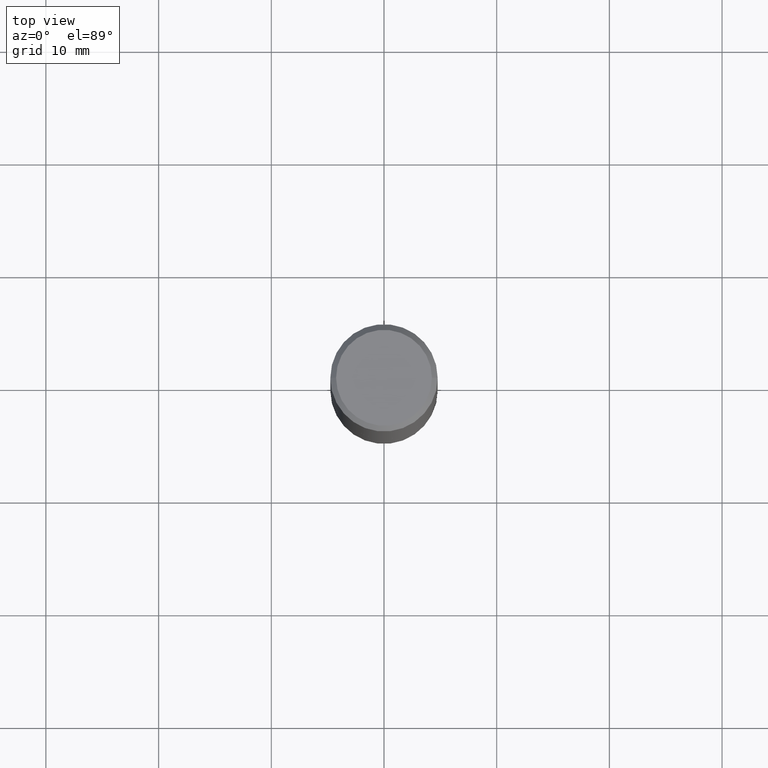
[diagram: clean part render]
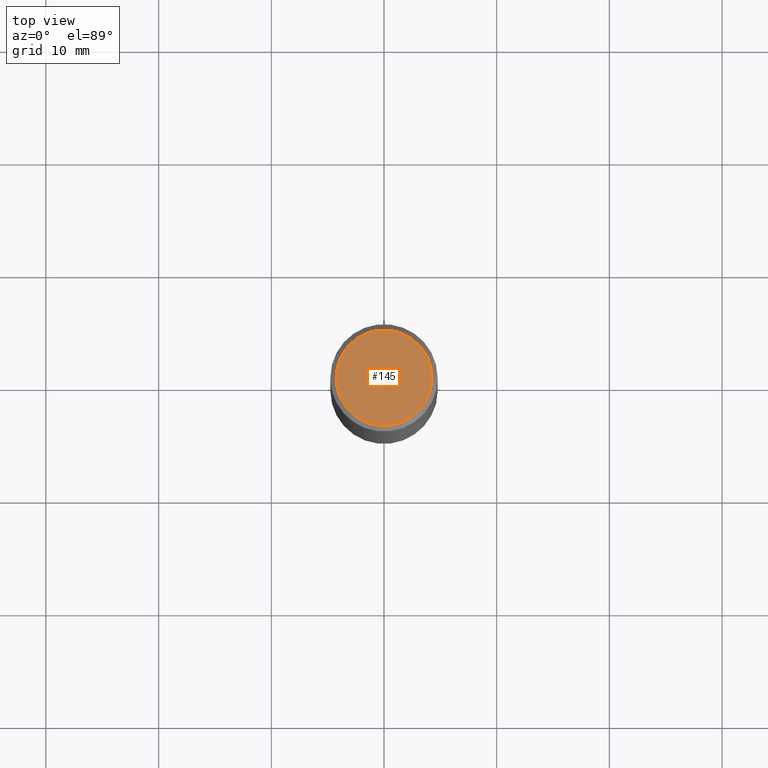
[diagram: same view with one face highlighted and labeled with its STEP entity id]
A machine part, top view. The second image highlights one B-rep face of the part: STEP entity #145.
In plain terms, the highlighted planar face has unit normal (0, -0, -1).
Its self-contained STEP definition (entity closure, byte-faithful):
#8 = VERTEX_POINT ( 'NONE', #209 ) ;
#14 = PLANE ( 'NONE',  #335 ) ;
#76 = CARTESIAN_POINT ( 'NONE',  ( 0.000000000000000000, 0.000000000000000000, 0.000000000000000000 ) ) ;
#83 = EDGE_LOOP ( 'NONE', ( #263, #156 ) ) ;
#93 = CIRCLE ( 'NONE', #160, 0.1674999999999998435 ) ;
#106 = EDGE_CURVE ( 'NONE', #311, #8, #191, .T. ) ;
#130 = DIRECTION ( 'NONE',  ( -1.000000000000000000, 6.982962677686265922E-15, -4.876176775795935793E-29 ) ) ;
#145 = ADVANCED_FACE ( 'NONE', ( #251 ), #14, .F. ) ;
#156 = ORIENTED_EDGE ( 'NONE', *, *, #106, .T. ) ;
#160 = AXIS2_PLACEMENT_3D ( 'NONE', #76, #198, #300 ) ;
#163 = DIRECTION ( 'NONE',  ( 2.438088387897960049E-29, -3.491481338843145188E-15, -1.000000000000000000 ) ) ;
#171 = CARTESIAN_POINT ( 'NONE',  ( 0.1674999999999998435, -1.252653207992877302E-15, 8.469775550109232378E-30 ) ) ;
#191 = CIRCLE ( 'NONE', #236, 0.1674999999999998435 ) ;
#192 = CARTESIAN_POINT ( 'NONE',  ( 1.169646248512448609E-15, 0.1674999999999998435, -5.848231242562263753E-16 ) ) ;
#194 = DIRECTION ( 'NONE',  ( 1.000000000000000000, -6.982962677686266711E-15, 4.876176775795936914E-29 ) ) ;
#198 = DIRECTION ( 'NONE',  ( -2.445468806185136597E-29, 3.491481338843145583E-15, 1.000000000000000000 ) ) ;
#209 = CARTESIAN_POINT ( 'NONE',  ( -0.1674999999999998435, 1.204561061900879864E-15, -8.301862719484106184E-30 ) ) ;
#236 = AXIS2_PLACEMENT_3D ( 'NONE', #323, #351, #194 ) ;
#251 = FACE_OUTER_BOUND ( 'NONE', #83, .T. ) ;
#263 = ORIENTED_EDGE ( 'NONE', *, *, #298, .T. ) ;
#298 = EDGE_CURVE ( 'NONE', #8, #311, #93, .T. ) ;
#300 = DIRECTION ( 'NONE',  ( 1.000000000000000000, -6.982962677686266711E-15, 4.876176775795936914E-29 ) ) ;
#311 = VERTEX_POINT ( 'NONE', #171 ) ;
#323 = CARTESIAN_POINT ( 'NONE',  ( 0.000000000000000000, 0.000000000000000000, 0.000000000000000000 ) ) ;
#335 = AXIS2_PLACEMENT_3D ( 'NONE', #192, #163, #130 ) ;
#351 = DIRECTION ( 'NONE',  ( -2.445468806185136597E-29, 3.491481338843145583E-15, 1.000000000000000000 ) ) ;